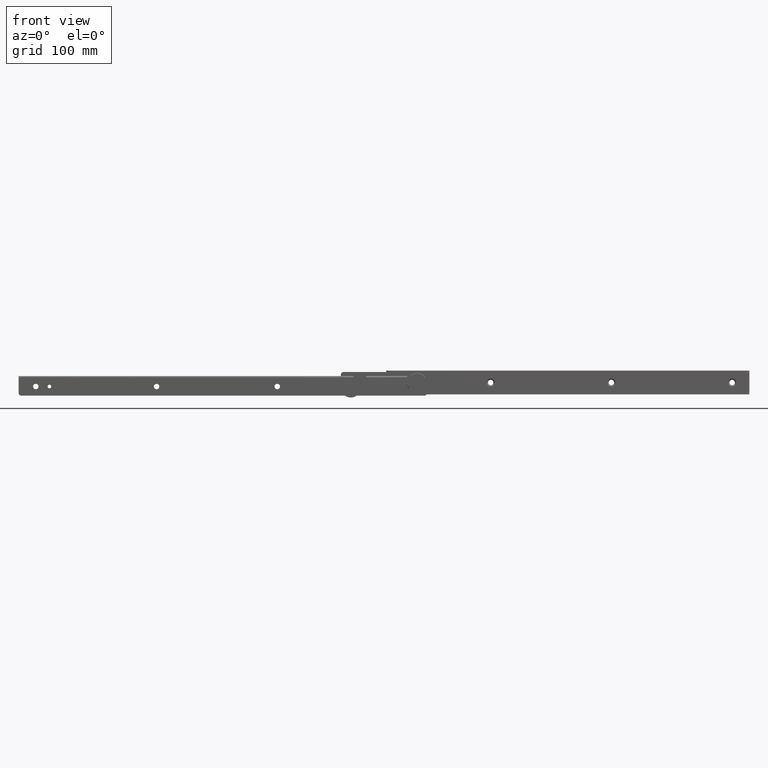
[diagram: clean part render]
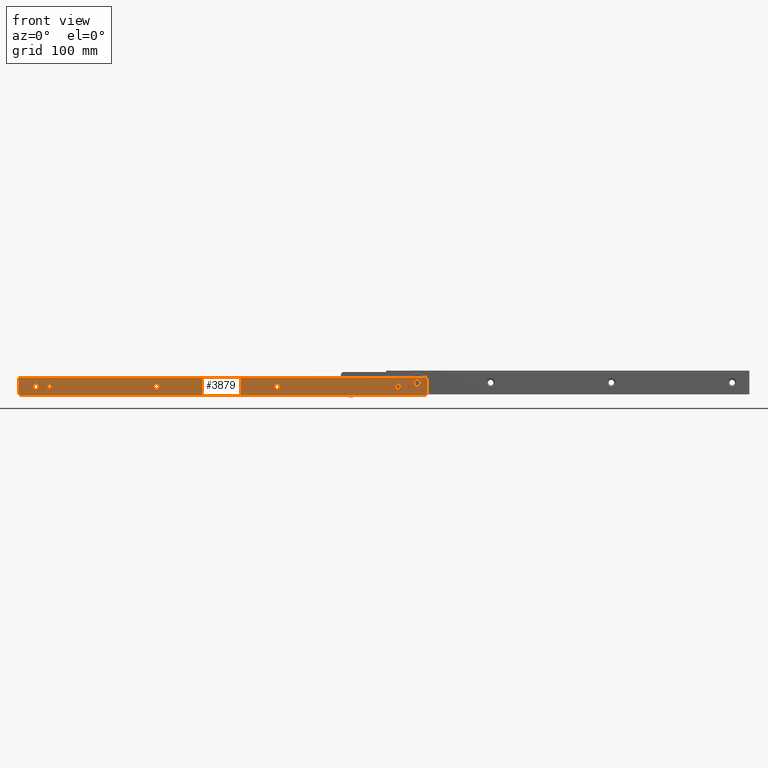
[diagram: same view with one face highlighted and labeled with its STEP entity id]
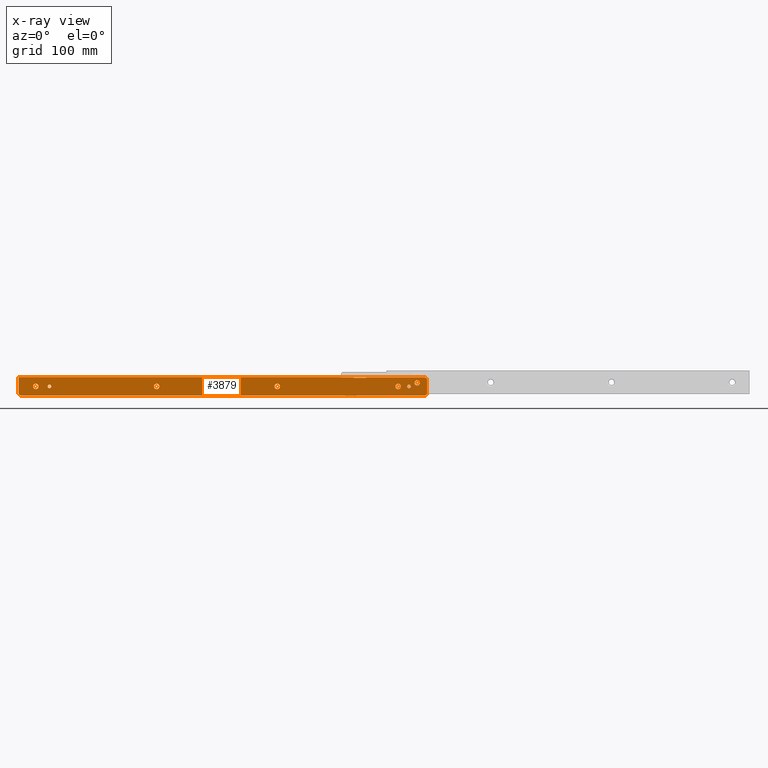
[diagram: x-ray of the same camera — body ghosted, the highlighted face saturated]
A machine part, front view. The second image highlights one B-rep face of the part: STEP entity #3879.
The next image is the same camera in x-ray: the body ghosted, the highlighted face saturated — about 0% of this face is hidden behind the body in this view.
In plain terms, the highlighted face is a freeform B-spline surface patch.
Its self-contained STEP definition (entity closure, byte-faithful):
#1390=CARTESIAN_POINT('',(81.070621897568884,-12.0,-7.251799004887793));
#1391=VERTEX_POINT('',#1390);
#1397=CARTESIAN_POINT('',(84.0,-12.0,-10.549999999999800));
#1398=VERTEX_POINT('',#1397);
#1399=CARTESIAN_POINT('',(81.070621897568884,-12.000000000000005,-7.251799004887793));
#1400=CARTESIAN_POINT('',(81.050000000000011,-12.000000000000002,-7.425288844121707));
#1401=CARTESIAN_POINT('',(81.050000000000011,-12.0,-7.599999999999800));
#1402=CARTESIAN_POINT('',(81.050000000000011,-12.0,-10.549999999999802));
#1403=CARTESIAN_POINT('',(84.0,-12.0,-10.549999999999800));
#1411=(BOUNDED_CURVE()B_SPLINE_CURVE(2,(#1399,#1400,#1401,#1402,#1403),.UNSPECIFIED.,.F.,.U.)B_SPLINE_CURVE_WITH_KNOTS((3,2,3),(0.229562473183962,0.250000000000000,0.500000000000000),.UNSPECIFIED.)CURVE()GEOMETRIC_REPRESENTATION_ITEM()RATIONAL_B_SPLINE_CURVE((0.956026753537775,0.976055947945057,1.0,0.707106781186548,1.0))REPRESENTATION_ITEM(''));
#1412=EDGE_CURVE('',#1391,#1398,#1411,.T.);
#1414=CARTESIAN_POINT('',(86.944497645915249,-12.0,-7.780093345794605));
#1415=VERTEX_POINT('',#1414);
#1416=CARTESIAN_POINT('',(84.0,-12.0,-10.549999999999800));
#1417=CARTESIAN_POINT('',(86.775082606235159,-12.000000000000002,-10.549999999999800));
#1418=CARTESIAN_POINT('',(86.944497645915249,-12.000000000000002,-7.780093345794605));
#1426=(BOUNDED_CURVE()B_SPLINE_CURVE(2,(#1416,#1417,#1418),.UNSPECIFIED.,.F.,.U.)B_SPLINE_CURVE_WITH_KNOTS((3,3),(0.500000000000000,0.739332944173680),.UNSPECIFIED.)CURVE()GEOMETRIC_REPRESENTATION_ITEM()RATIONAL_B_SPLINE_CURVE((1.0,0.719604014451482,0.976072002949424))REPRESENTATION_ITEM(''));
#1427=EDGE_CURVE('',#1398,#1415,#1426,.T.);
#1501=CARTESIAN_POINT('',(84.0,-12.0,-4.649999999999801));
#1502=VERTEX_POINT('',#1501);
#1503=CARTESIAN_POINT('',(86.944497645915249,-12.000000000000004,-7.780093345794605));
#1504=CARTESIAN_POINT('',(86.950000000000003,-11.999999999999998,-7.690130806329885));
#1505=CARTESIAN_POINT('',(86.950000000000003,-12.0,-7.599999999999800));
#1506=CARTESIAN_POINT('',(86.950000000000003,-12.0,-4.649999999999801));
#1507=CARTESIAN_POINT('',(84.0,-12.0,-4.649999999999801));
#1515=(BOUNDED_CURVE()B_SPLINE_CURVE(2,(#1503,#1504,#1505,#1506,#1507),.UNSPECIFIED.,.F.,.U.)B_SPLINE_CURVE_WITH_KNOTS((3,2,3),(0.739332944173680,0.750000000000000,1.0),.UNSPECIFIED.)CURVE()GEOMETRIC_REPRESENTATION_ITEM()RATIONAL_B_SPLINE_CURVE((0.976072002949423,0.987502766735065,1.0,0.707106781186548,1.0))REPRESENTATION_ITEM(''));
#1516=EDGE_CURVE('',#1415,#1502,#1515,.T.);
#1518=CARTESIAN_POINT('',(84.0,-12.0,-4.649999999999801));
#1519=CARTESIAN_POINT('',(81.379885153621856,-12.0,-4.649999999999800));
#1520=CARTESIAN_POINT('',(81.070621897568884,-12.000000000000005,-7.251799004887793));
#1528=(BOUNDED_CURVE()B_SPLINE_CURVE(2,(#1518,#1519,#1520),.UNSPECIFIED.,.F.,.U.)B_SPLINE_CURVE_WITH_KNOTS((3,3),(0.0,0.229562473183962),.UNSPECIFIED.)CURVE()GEOMETRIC_REPRESENTATION_ITEM()RATIONAL_B_SPLINE_CURVE((1.0,0.731050833241490,0.956026753537775))REPRESENTATION_ITEM(''));
#1529=EDGE_CURVE('',#1502,#1391,#1528,.T.);
#1587=CARTESIAN_POINT('',(65.990752003376571,-11.999999992303430,-11.835377339223269));
#1588=VERTEX_POINT('',#1587);
#1594=CARTESIAN_POINT('',(63.0,-12.0,-8.599999999999799));
#1595=VERTEX_POINT('',#1594);
#1596=CARTESIAN_POINT('',(65.990752003376571,-11.999999992303422,-11.835377339223271));
#1597=CARTESIAN_POINT('',(66.0,-11.999999999999998,-11.717870372811326));
#1598=CARTESIAN_POINT('',(66.0,-12.0,-11.599999999999801));
#1599=CARTESIAN_POINT('',(66.0,-12.0,-8.599999999999799));
#1600=CARTESIAN_POINT('',(63.0,-12.0,-8.599999999999799));
#1608=(BOUNDED_CURVE()B_SPLINE_CURVE(2,(#1596,#1597,#1598,#1599,#1600),.UNSPECIFIED.,.F.,.U.)B_SPLINE_CURVE_WITH_KNOTS((3,2,3),(0.736331294723342,0.750000000000000,1.0),.UNSPECIFIED.)CURVE()GEOMETRIC_REPRESENTATION_ITEM()RATIONAL_B_SPLINE_CURVE((0.969723343839298,0.983986115658029,1.0,0.707106781186548,1.0))REPRESENTATION_ITEM(''));
#1609=EDGE_CURVE('',#1588,#1595,#1608,.T.);
#1611=CARTESIAN_POINT('',(60.009247996623429,-11.999999992303421,-11.364622660776320));
#1612=VERTEX_POINT('',#1611);
#1613=CARTESIAN_POINT('',(63.0,-12.0,-8.599999999999799));
#1614=CARTESIAN_POINT('',(60.226828620919044,-12.0,-8.599999999999799));
#1615=CARTESIAN_POINT('',(60.009247996623429,-11.999999992303421,-11.364622660776320));
#1623=(BOUNDED_CURVE()B_SPLINE_CURVE(2,(#1613,#1614,#1615),.UNSPECIFIED.,.F.,.U.)B_SPLINE_CURVE_WITH_KNOTS((3,3),(0.0,0.236331294723342),.UNSPECIFIED.)CURVE()GEOMETRIC_REPRESENTATION_ITEM()RATIONAL_B_SPLINE_CURVE((1.0,0.723120665528519,0.969723343839297))REPRESENTATION_ITEM(''));
#1624=EDGE_CURVE('',#1595,#1612,#1623,.T.);
#1670=CARTESIAN_POINT('',(63.0,-12.0,-14.599999999999801));
#1671=VERTEX_POINT('',#1670);
#1672=CARTESIAN_POINT('',(60.009247996623436,-11.999999992303419,-11.364622660776327));
#1673=CARTESIAN_POINT('',(60.000000000000007,-12.000000000000002,-11.482129627188270));
#1674=CARTESIAN_POINT('',(60.0,-12.0,-11.599999999999801));
#1675=CARTESIAN_POINT('',(60.0,-12.0,-14.599999999999794));
#1676=CARTESIAN_POINT('',(63.0,-12.0,-14.599999999999801));
#1684=(BOUNDED_CURVE()B_SPLINE_CURVE(2,(#1672,#1673,#1674,#1675,#1676),.UNSPECIFIED.,.F.,.U.)B_SPLINE_CURVE_WITH_KNOTS((3,2,3),(0.236331294723342,0.250000000000000,0.500000000000000),.UNSPECIFIED.)CURVE()GEOMETRIC_REPRESENTATION_ITEM()RATIONAL_B_SPLINE_CURVE((0.969723343839297,0.983986115658029,1.0,0.707106781186548,1.0))REPRESENTATION_ITEM(''));
#1685=EDGE_CURVE('',#1612,#1671,#1684,.T.);
#1687=CARTESIAN_POINT('',(63.0,-12.0,-14.599999999999801));
#1688=CARTESIAN_POINT('',(65.773171379080949,-12.0,-14.599999999999801));
#1689=CARTESIAN_POINT('',(65.990752003376571,-11.999999992303430,-11.835377339223271));
#1697=(BOUNDED_CURVE()B_SPLINE_CURVE(2,(#1687,#1688,#1689),.UNSPECIFIED.,.F.,.U.)B_SPLINE_CURVE_WITH_KNOTS((3,3),(0.500000000000000,0.736331294723342),.UNSPECIFIED.)CURVE()GEOMETRIC_REPRESENTATION_ITEM()RATIONAL_B_SPLINE_CURVE((1.0,0.723120665528519,0.969723343839297))REPRESENTATION_ITEM(''));
#1698=EDGE_CURVE('',#1671,#1588,#1697,.T.);
#1769=CARTESIAN_POINT('',(-67.009247996623415,-11.999999992303421,-11.835377339223280));
#1770=VERTEX_POINT('',#1769);
#1776=CARTESIAN_POINT('',(-70.0,-12.0,-8.599999999999799));
#1777=VERTEX_POINT('',#1776);
#1778=CARTESIAN_POINT('',(-67.009247996623415,-11.999999992303424,-11.835377339223275));
#1779=CARTESIAN_POINT('',(-67.000000000000014,-12.0,-11.717870372811326));
#1780=CARTESIAN_POINT('',(-67.0,-12.0,-11.599999999999801));
#1781=CARTESIAN_POINT('',(-67.0,-12.0,-8.599999999999799));
#1782=CARTESIAN_POINT('',(-70.0,-12.0,-8.599999999999799));
#1790=(BOUNDED_CURVE()B_SPLINE_CURVE(2,(#1778,#1779,#1780,#1781,#1782),.UNSPECIFIED.,.F.,.U.)B_SPLINE_CURVE_WITH_KNOTS((3,2,3),(0.736331294723342,0.750000000000000,1.0),.UNSPECIFIED.)CURVE()GEOMETRIC_REPRESENTATION_ITEM()RATIONAL_B_SPLINE_CURVE((0.969723343839297,0.983986115658029,1.0,0.707106781186548,1.0))REPRESENTATION_ITEM(''));
#1791=EDGE_CURVE('',#1770,#1777,#1790,.T.);
#1793=CARTESIAN_POINT('',(-72.990752003376599,-11.999999992303421,-11.364622660776320));
#1794=VERTEX_POINT('',#1793);
#1795=CARTESIAN_POINT('',(-70.0,-12.0,-8.599999999999799));
#1796=CARTESIAN_POINT('',(-72.773171379080964,-12.0,-8.599999999999799));
#1797=CARTESIAN_POINT('',(-72.990752003376599,-11.999999992303421,-11.364622660776320));
#1805=(BOUNDED_CURVE()B_SPLINE_CURVE(2,(#1795,#1796,#1797),.UNSPECIFIED.,.F.,.U.)B_SPLINE_CURVE_WITH_KNOTS((3,3),(0.0,0.236331294723342),.UNSPECIFIED.)CURVE()GEOMETRIC_REPRESENTATION_ITEM()RATIONAL_B_SPLINE_CURVE((1.0,0.723120665528519,0.969723343839297))REPRESENTATION_ITEM(''));
#1806=EDGE_CURVE('',#1777,#1794,#1805,.T.);
#1852=CARTESIAN_POINT('',(-70.0,-12.0,-14.599999999999801));
#1853=VERTEX_POINT('',#1852);
#1854=CARTESIAN_POINT('',(-72.990752003376599,-11.999999992303421,-11.364622660776320));
#1855=CARTESIAN_POINT('',(-73.000000000000014,-12.000000000000004,-11.482129627188272));
#1856=CARTESIAN_POINT('',(-73.000000000000014,-12.0,-11.599999999999801));
#1857=CARTESIAN_POINT('',(-73.000000000000014,-12.0,-14.599999999999794));
#1858=CARTESIAN_POINT('',(-70.0,-12.0,-14.599999999999801));
#1866=(BOUNDED_CURVE()B_SPLINE_CURVE(2,(#1854,#1855,#1856,#1857,#1858),.UNSPECIFIED.,.F.,.U.)B_SPLINE_CURVE_WITH_KNOTS((3,2,3),(0.236331294723342,0.250000000000000,0.500000000000000),.UNSPECIFIED.)CURVE()GEOMETRIC_REPRESENTATION_ITEM()RATIONAL_B_SPLINE_CURVE((0.969723343839297,0.983986115658029,1.0,0.707106781186548,1.0))REPRESENTATION_ITEM(''));
#1867=EDGE_CURVE('',#1794,#1853,#1866,.T.);
#1869=CARTESIAN_POINT('',(-70.0,-12.0,-14.599999999999801));
#1870=CARTESIAN_POINT('',(-67.226828620919051,-12.0,-14.599999999999801));
#1871=CARTESIAN_POINT('',(-67.009247996623415,-11.999999992303421,-11.835377339223271));
#1879=(BOUNDED_CURVE()B_SPLINE_CURVE(2,(#1869,#1870,#1871),.UNSPECIFIED.,.F.,.U.)B_SPLINE_CURVE_WITH_KNOTS((3,3),(0.500000000000000,0.736331294723342),.UNSPECIFIED.)CURVE()GEOMETRIC_REPRESENTATION_ITEM()RATIONAL_B_SPLINE_CURVE((1.0,0.723120665528519,0.969723343839297))REPRESENTATION_ITEM(''));
#1880=EDGE_CURVE('',#1853,#1770,#1879,.T.);
#1951=CARTESIAN_POINT('',(-200.009247996623400,-11.999999992303421,-11.835377339223280));
#1952=VERTEX_POINT('',#1951);
#1958=CARTESIAN_POINT('',(-203.0,-12.0,-8.599999999999799));
#1959=VERTEX_POINT('',#1958);
#1960=CARTESIAN_POINT('',(-200.009247996623460,-11.999999992303424,-11.835377339223275));
#1961=CARTESIAN_POINT('',(-200.000000000000060,-12.0,-11.717870372811326));
#1962=CARTESIAN_POINT('',(-200.0,-12.0,-11.599999999999801));
#1963=CARTESIAN_POINT('',(-200.0,-12.0,-8.599999999999799));
#1964=CARTESIAN_POINT('',(-203.0,-12.0,-8.599999999999799));
#1972=(BOUNDED_CURVE()B_SPLINE_CURVE(2,(#1960,#1961,#1962,#1963,#1964),.UNSPECIFIED.,.F.,.U.)B_SPLINE_CURVE_WITH_KNOTS((3,2,3),(0.736331294723342,0.750000000000000,1.0),.UNSPECIFIED.)CURVE()GEOMETRIC_REPRESENTATION_ITEM()RATIONAL_B_SPLINE_CURVE((0.969723343839297,0.983986115658029,1.0,0.707106781186548,1.0))REPRESENTATION_ITEM(''));
#1973=EDGE_CURVE('',#1952,#1959,#1972,.T.);
#1975=CARTESIAN_POINT('',(-205.990752003376600,-11.999999992303410,-11.364622660776320));
#1976=VERTEX_POINT('',#1975);
#1977=CARTESIAN_POINT('',(-203.0,-12.0,-8.599999999999799));
#1978=CARTESIAN_POINT('',(-205.773171379081020,-12.0,-8.599999999999799));
#1979=CARTESIAN_POINT('',(-205.990752003376570,-11.999999992303410,-11.364622660776320));
#1987=(BOUNDED_CURVE()B_SPLINE_CURVE(2,(#1977,#1978,#1979),.UNSPECIFIED.,.F.,.U.)B_SPLINE_CURVE_WITH_KNOTS((3,3),(0.0,0.236331294723342),.UNSPECIFIED.)CURVE()GEOMETRIC_REPRESENTATION_ITEM()RATIONAL_B_SPLINE_CURVE((1.0,0.723120665528519,0.969723343839297))REPRESENTATION_ITEM(''));
#1988=EDGE_CURVE('',#1959,#1976,#1987,.T.);
#2034=CARTESIAN_POINT('',(-203.0,-12.0,-14.599999999999801));
#2035=VERTEX_POINT('',#2034);
#2036=CARTESIAN_POINT('',(-205.990752003376540,-11.999999992303408,-11.364622660776318));
#2037=CARTESIAN_POINT('',(-206.000000000000060,-12.000000000000004,-11.482129627188272));
#2038=CARTESIAN_POINT('',(-206.0,-12.0,-11.599999999999801));
#2039=CARTESIAN_POINT('',(-206.0,-12.0,-14.599999999999794));
#2040=CARTESIAN_POINT('',(-203.0,-12.0,-14.599999999999801));
#2048=(BOUNDED_CURVE()B_SPLINE_CURVE(2,(#2036,#2037,#2038,#2039,#2040),.UNSPECIFIED.,.F.,.U.)B_SPLINE_CURVE_WITH_KNOTS((3,2,3),(0.236331294723342,0.250000000000000,0.500000000000000),.UNSPECIFIED.)CURVE()GEOMETRIC_REPRESENTATION_ITEM()RATIONAL_B_SPLINE_CURVE((0.969723343839297,0.983986115658029,1.0,0.707106781186548,1.0))REPRESENTATION_ITEM(''));
#2049=EDGE_CURVE('',#1976,#2035,#2048,.T.);
#2051=CARTESIAN_POINT('',(-203.0,-12.0,-14.599999999999801));
#2052=CARTESIAN_POINT('',(-200.226828620919010,-12.0,-14.599999999999801));
#2053=CARTESIAN_POINT('',(-200.009247996623460,-11.999999992303421,-11.835377339223271));
#2061=(BOUNDED_CURVE()B_SPLINE_CURVE(2,(#2051,#2052,#2053),.UNSPECIFIED.,.F.,.U.)B_SPLINE_CURVE_WITH_KNOTS((3,3),(0.500000000000000,0.736331294723342),.UNSPECIFIED.)CURVE()GEOMETRIC_REPRESENTATION_ITEM()RATIONAL_B_SPLINE_CURVE((1.0,0.723120665528519,0.969723343839297))REPRESENTATION_ITEM(''));
#2062=EDGE_CURVE('',#2035,#1952,#2061,.T.);
#2133=CARTESIAN_POINT('',(-333.009247996623510,-11.999999992303430,-11.835377339223269));
#2134=VERTEX_POINT('',#2133);
#2140=CARTESIAN_POINT('',(-336.0,-12.0,-8.599999999999799));
#2141=VERTEX_POINT('',#2140);
#2142=CARTESIAN_POINT('',(-333.009247996623510,-11.999999992303430,-11.835377339223269));
#2143=CARTESIAN_POINT('',(-333.0,-11.999999999999996,-11.717870372811324));
#2144=CARTESIAN_POINT('',(-333.0,-12.0,-11.599999999999801));
#2145=CARTESIAN_POINT('',(-333.000000000000110,-12.0,-8.599999999999799));
#2146=CARTESIAN_POINT('',(-336.0,-12.0,-8.599999999999799));
#2154=(BOUNDED_CURVE()B_SPLINE_CURVE(2,(#2142,#2143,#2144,#2145,#2146),.UNSPECIFIED.,.F.,.U.)B_SPLINE_CURVE_WITH_KNOTS((3,2,3),(0.736331294723342,0.750000000000000,1.0),.UNSPECIFIED.)CURVE()GEOMETRIC_REPRESENTATION_ITEM()RATIONAL_B_SPLINE_CURVE((0.969723343839298,0.983986115658029,1.0,0.707106781186548,1.0))REPRESENTATION_ITEM(''));
#2155=EDGE_CURVE('',#2134,#2141,#2154,.T.);
#2157=CARTESIAN_POINT('',(-338.990752003376600,-11.999999992303430,-11.364622660776330));
#2158=VERTEX_POINT('',#2157);
#2159=CARTESIAN_POINT('',(-336.0,-12.0,-8.599999999999799));
#2160=CARTESIAN_POINT('',(-338.773171379081080,-12.000000000000002,-8.599999999999803));
#2161=CARTESIAN_POINT('',(-338.990752003376600,-11.999999992303438,-11.364622660776327));
#2169=(BOUNDED_CURVE()B_SPLINE_CURVE(2,(#2159,#2160,#2161),.UNSPECIFIED.,.F.,.U.)B_SPLINE_CURVE_WITH_KNOTS((3,3),(0.0,0.236331294723343),.UNSPECIFIED.)CURVE()GEOMETRIC_REPRESENTATION_ITEM()RATIONAL_B_SPLINE_CURVE((1.0,0.723120665528518,0.969723343839298))REPRESENTATION_ITEM(''));
#2170=EDGE_CURVE('',#2141,#2158,#2169,.T.);
#2216=CARTESIAN_POINT('',(-336.0,-12.0,-14.599999999999801));
#2217=VERTEX_POINT('',#2216);
#2218=CARTESIAN_POINT('',(-338.990752003376600,-11.999999992303438,-11.364622660776327));
#2219=CARTESIAN_POINT('',(-339.0,-11.999999999999996,-11.482129627188275));
#2220=CARTESIAN_POINT('',(-339.0,-12.0,-11.599999999999801));
#2221=CARTESIAN_POINT('',(-339.0,-12.0,-14.599999999999794));
#2222=CARTESIAN_POINT('',(-336.0,-12.0,-14.599999999999801));
#2230=(BOUNDED_CURVE()B_SPLINE_CURVE(2,(#2218,#2219,#2220,#2221,#2222),.UNSPECIFIED.,.F.,.U.)B_SPLINE_CURVE_WITH_KNOTS((3,2,3),(0.236331294723343,0.250000000000000,0.500000000000000),.UNSPECIFIED.)CURVE()GEOMETRIC_REPRESENTATION_ITEM()RATIONAL_B_SPLINE_CURVE((0.969723343839298,0.983986115658030,1.0,0.707106781186548,1.0))REPRESENTATION_ITEM(''));
#2231=EDGE_CURVE('',#2158,#2217,#2230,.T.);
#2233=CARTESIAN_POINT('',(-336.0,-12.0,-14.599999999999801));
#2234=CARTESIAN_POINT('',(-333.226828620918980,-12.0,-14.599999999999801));
#2235=CARTESIAN_POINT('',(-333.009247996623460,-11.999999992303430,-11.835377339223271));
#2243=(BOUNDED_CURVE()B_SPLINE_CURVE(2,(#2233,#2234,#2235),.UNSPECIFIED.,.F.,.U.)B_SPLINE_CURVE_WITH_KNOTS((3,3),(0.500000000000000,0.736331294723342),.UNSPECIFIED.)CURVE()GEOMETRIC_REPRESENTATION_ITEM()RATIONAL_B_SPLINE_CURVE((1.0,0.723120665528519,0.969723343839297))REPRESENTATION_ITEM(''));
#2244=EDGE_CURVE('',#2217,#2134,#2243,.T.);
#2304=CARTESIAN_POINT('',(73.013980951174034,-12.0,-11.363931497864510));
#2305=VERTEX_POINT('',#2304);
#2311=CARTESIAN_POINT('',(75.0,-12.0,-13.599999999999801));
#2312=VERTEX_POINT('',#2311);
#2313=CARTESIAN_POINT('',(73.013980951174034,-11.999999999999998,-11.363931497864506));
#2314=CARTESIAN_POINT('',(73.0,-12.000000000000004,-11.481551727527217));
#2315=CARTESIAN_POINT('',(73.0,-12.0,-11.599999999999801));
#2316=CARTESIAN_POINT('',(72.999999999999986,-12.0,-13.599999999999799));
#2317=CARTESIAN_POINT('',(75.0,-12.0,-13.599999999999801));
#2325=(BOUNDED_CURVE()B_SPLINE_CURVE(2,(#2313,#2314,#2315,#2316,#2317),.UNSPECIFIED.,.F.,.U.)B_SPLINE_CURVE_WITH_KNOTS((3,2,3),(0.229562467929609,0.250000000000000,0.500000000000000),.UNSPECIFIED.)CURVE()GEOMETRIC_REPRESENTATION_ITEM()RATIONAL_B_SPLINE_CURVE((0.956026743239028,0.976055941789200,1.0,0.707106781186548,1.0))REPRESENTATION_ITEM(''));
#2326=EDGE_CURVE('',#2305,#2312,#2325,.T.);
#2328=CARTESIAN_POINT('',(76.996269595957983,-12.0,-11.722097093551350));
#2329=VERTEX_POINT('',#2328);
#2330=CARTESIAN_POINT('',(75.0,-12.0,-13.599999999999801));
#2331=CARTESIAN_POINT('',(76.881412106463145,-12.0,-13.599999999999799));
#2332=CARTESIAN_POINT('',(76.996269595957983,-12.000000000000002,-11.722097093551351));
#2340=(BOUNDED_CURVE()B_SPLINE_CURVE(2,(#2330,#2331,#2332),.UNSPECIFIED.,.F.,.U.)B_SPLINE_CURVE_WITH_KNOTS((3,3),(0.500000000000000,0.739332959738503),.UNSPECIFIED.)CURVE()GEOMETRIC_REPRESENTATION_ITEM()RATIONAL_B_SPLINE_CURVE((1.0,0.719603996216158,0.976072036307799))REPRESENTATION_ITEM(''));
#2341=EDGE_CURVE('',#2312,#2329,#2340,.T.);
#2415=CARTESIAN_POINT('',(75.0,-12.0,-9.599999999999799));
#2416=VERTEX_POINT('',#2415);
#2417=CARTESIAN_POINT('',(76.996269595957983,-11.999999999999995,-11.722097093551355));
#2418=CARTESIAN_POINT('',(77.0,-11.999999999999998,-11.661105541119424));
#2419=CARTESIAN_POINT('',(77.0,-12.0,-11.599999999999801));
#2420=CARTESIAN_POINT('',(77.000000000000014,-12.0,-9.599999999999799));
#2421=CARTESIAN_POINT('',(75.0,-12.0,-9.599999999999799));
#2429=(BOUNDED_CURVE()B_SPLINE_CURVE(2,(#2417,#2418,#2419,#2420,#2421),.UNSPECIFIED.,.F.,.U.)B_SPLINE_CURVE_WITH_KNOTS((3,2,3),(0.739332959738504,0.750000000000000,1.0),.UNSPECIFIED.)CURVE()GEOMETRIC_REPRESENTATION_ITEM()RATIONAL_B_SPLINE_CURVE((0.976072036307801,0.987502784970391,1.0,0.707106781186548,1.0))REPRESENTATION_ITEM(''));
#2430=EDGE_CURVE('',#2329,#2416,#2429,.T.);
#2432=CARTESIAN_POINT('',(75.0,-12.0,-9.599999999999799));
#2433=CARTESIAN_POINT('',(73.223651007223935,-12.0,-9.599999999999799));
#2434=CARTESIAN_POINT('',(73.013980951174034,-11.999999999999995,-11.363931497864504));
#2442=(BOUNDED_CURVE()B_SPLINE_CURVE(2,(#2432,#2433,#2434),.UNSPECIFIED.,.F.,.U.)B_SPLINE_CURVE_WITH_KNOTS((3,3),(0.0,0.229562467929609),.UNSPECIFIED.)CURVE()GEOMETRIC_REPRESENTATION_ITEM()RATIONAL_B_SPLINE_CURVE((1.0,0.731050839397348,0.956026743239028))REPRESENTATION_ITEM(''));
#2443=EDGE_CURVE('',#2416,#2305,#2442,.T.);
#2490=CARTESIAN_POINT('',(-322.986019048825880,-12.0,-11.363931497864510));
#2491=VERTEX_POINT('',#2490);
#2497=CARTESIAN_POINT('',(-321.0,-12.0,-13.599999999999801));
#2498=VERTEX_POINT('',#2497);
#2499=CARTESIAN_POINT('',(-322.986019048825990,-12.000000000000002,-11.363931497864510));
#2500=CARTESIAN_POINT('',(-323.000000000000060,-11.999999999999996,-11.481551727527219));
#2501=CARTESIAN_POINT('',(-323.0,-12.0,-11.599999999999801));
#2502=CARTESIAN_POINT('',(-323.000000000000060,-12.0,-13.599999999999799));
#2503=CARTESIAN_POINT('',(-321.0,-12.0,-13.599999999999801));
#2511=(BOUNDED_CURVE()B_SPLINE_CURVE(2,(#2499,#2500,#2501,#2502,#2503),.UNSPECIFIED.,.F.,.U.)B_SPLINE_CURVE_WITH_KNOTS((3,2,3),(0.229562467929608,0.250000000000000,0.500000000000000),.UNSPECIFIED.)CURVE()GEOMETRIC_REPRESENTATION_ITEM()RATIONAL_B_SPLINE_CURVE((0.956026743239027,0.976055941789200,1.0,0.707106781186548,1.0))REPRESENTATION_ITEM(''));
#2512=EDGE_CURVE('',#2491,#2498,#2511,.T.);
#2514=CARTESIAN_POINT('',(-319.003730404042020,-12.0,-11.722097093551350));
#2515=VERTEX_POINT('',#2514);
#2516=CARTESIAN_POINT('',(-321.0,-12.0,-13.599999999999801));
#2517=CARTESIAN_POINT('',(-319.118587893536810,-12.0,-13.599999999999799));
#2518=CARTESIAN_POINT('',(-319.003730404042020,-12.000000000000002,-11.722097093551351));
#2526=(BOUNDED_CURVE()B_SPLINE_CURVE(2,(#2516,#2517,#2518),.UNSPECIFIED.,.F.,.U.)B_SPLINE_CURVE_WITH_KNOTS((3,3),(0.500000000000000,0.739332959738503),.UNSPECIFIED.)CURVE()GEOMETRIC_REPRESENTATION_ITEM()RATIONAL_B_SPLINE_CURVE((1.0,0.719603996216158,0.976072036307799))REPRESENTATION_ITEM(''));
#2527=EDGE_CURVE('',#2498,#2515,#2526,.T.);
#2601=CARTESIAN_POINT('',(-321.0,-12.0,-9.599999999999799));
#2602=VERTEX_POINT('',#2601);
#2603=CARTESIAN_POINT('',(-319.003730404042070,-12.0,-11.722097093551350));
#2604=CARTESIAN_POINT('',(-319.0,-12.000000000000002,-11.661105541119426));
#2605=CARTESIAN_POINT('',(-319.0,-12.0,-11.599999999999801));
#2606=CARTESIAN_POINT('',(-319.0,-12.0,-9.599999999999799));
#2607=CARTESIAN_POINT('',(-321.0,-12.0,-9.599999999999799));
#2615=(BOUNDED_CURVE()B_SPLINE_CURVE(2,(#2603,#2604,#2605,#2606,#2607),.UNSPECIFIED.,.F.,.U.)B_SPLINE_CURVE_WITH_KNOTS((3,2,3),(0.739332959738504,0.750000000000000,1.0),.UNSPECIFIED.)CURVE()GEOMETRIC_REPRESENTATION_ITEM()RATIONAL_B_SPLINE_CURVE((0.976072036307801,0.987502784970391,1.0,0.707106781186548,1.0))REPRESENTATION_ITEM(''));
#2616=EDGE_CURVE('',#2515,#2602,#2615,.T.);
#2618=CARTESIAN_POINT('',(-321.0,-12.0,-9.599999999999799));
#2619=CARTESIAN_POINT('',(-322.776348992776090,-12.0,-9.599999999999801));
#2620=CARTESIAN_POINT('',(-322.986019048825990,-12.000000000000005,-11.363931497864503));
#2628=(BOUNDED_CURVE()B_SPLINE_CURVE(2,(#2618,#2619,#2620),.UNSPECIFIED.,.F.,.U.)B_SPLINE_CURVE_WITH_KNOTS((3,3),(0.0,0.229562467929608),.UNSPECIFIED.)CURVE()GEOMETRIC_REPRESENTATION_ITEM()RATIONAL_B_SPLINE_CURVE((1.0,0.731050839397348,0.956026743239027))REPRESENTATION_ITEM(''));
#2629=EDGE_CURVE('',#2602,#2491,#2628,.T.);
#3061=CARTESIAN_POINT('',(14.0,-12.0,-1.999999999999800));
#3062=VERTEX_POINT('',#3061);
#3068=CARTESIAN_POINT('',(28.0,-12.0,-1.999999999999800));
#3069=VERTEX_POINT('',#3068);
#3070=CARTESIAN_POINT('',(28.0,-12.0,-1.999999999999800));
#3071=CARTESIAN_POINT('',(14.0,-12.0,-1.999999999999800));
#3072=QUASI_UNIFORM_CURVE('',1,(#3070,#3071),.UNSPECIFIED.,.F.,.U.);
#3073=EDGE_CURVE('',#3069,#3062,#3072,.T.);
#3097=CARTESIAN_POINT('',(92.0,-12.0,-21.600000000000001));
#3098=VERTEX_POINT('',#3097);
#3099=CARTESIAN_POINT('',(95.0,-12.0,-18.600000000000001));
#3100=VERTEX_POINT('',#3099);
#3101=CARTESIAN_POINT('',(92.0,-12.0,-21.600000000000001));
#3102=CARTESIAN_POINT('',(95.000000000000014,-12.0,-21.600000000000005));
#3103=CARTESIAN_POINT('',(95.0,-12.0,-18.600000000000001));
#3111=(BOUNDED_CURVE()B_SPLINE_CURVE(2,(#3101,#3102,#3103),.UNSPECIFIED.,.F.,.U.)CURVE()GEOMETRIC_REPRESENTATION_ITEM()QUASI_UNIFORM_CURVE()RATIONAL_B_SPLINE_CURVE((1.0,0.707106781186548,1.0))REPRESENTATION_ITEM(''));
#3112=EDGE_CURVE('',#3098,#3100,#3111,.T.);
#3175=CARTESIAN_POINT('',(92.0,-12.0,-1.599999999999795));
#3176=VERTEX_POINT('',#3175);
#3182=CARTESIAN_POINT('',(95.0,-12.0,-4.599999999999800));
#3183=VERTEX_POINT('',#3182);
#3184=CARTESIAN_POINT('',(95.0,-12.0,-4.599999999999800));
#3185=CARTESIAN_POINT('',(95.000000000000014,-12.0,-1.599999999999799));
#3186=CARTESIAN_POINT('',(92.0,-12.0,-1.599999999999800));
#3194=(BOUNDED_CURVE()B_SPLINE_CURVE(2,(#3184,#3185,#3186),.UNSPECIFIED.,.F.,.U.)CURVE()GEOMETRIC_REPRESENTATION_ITEM()QUASI_UNIFORM_CURVE()RATIONAL_B_SPLINE_CURVE((1.0,0.707106781186548,1.0))REPRESENTATION_ITEM(''));
#3195=EDGE_CURVE('',#3183,#3176,#3194,.T.);
#3341=CARTESIAN_POINT('',(-355.0,-12.0,-18.600000000000001));
#3342=VERTEX_POINT('',#3341);
#3343=CARTESIAN_POINT('',(-352.0,-12.0,-21.600000000000001));
#3344=VERTEX_POINT('',#3343);
#3345=CARTESIAN_POINT('',(-355.0,-12.0,-18.600000000000001));
#3346=CARTESIAN_POINT('',(-355.000000000000060,-12.0,-21.600000000000005));
#3347=CARTESIAN_POINT('',(-352.0,-12.0,-21.600000000000001));
#3355=(BOUNDED_CURVE()B_SPLINE_CURVE(2,(#3345,#3346,#3347),.UNSPECIFIED.,.F.,.U.)CURVE()GEOMETRIC_REPRESENTATION_ITEM()QUASI_UNIFORM_CURVE()RATIONAL_B_SPLINE_CURVE((1.0,0.707106781186548,1.0))REPRESENTATION_ITEM(''));
#3356=EDGE_CURVE('',#3342,#3344,#3355,.T.);
#3393=CARTESIAN_POINT('',(73.0,-12.0,-1.599999999999795));
#3394=VERTEX_POINT('',#3393);
#3395=CARTESIAN_POINT('',(92.0,-12.0,-1.599999999999795));
#3396=CARTESIAN_POINT('',(73.0,-12.0,-1.599999999999795));
#3397=QUASI_UNIFORM_CURVE('',1,(#3395,#3396),.UNSPECIFIED.,.F.,.U.);
#3398=EDGE_CURVE('',#3176,#3394,#3397,.T.);
#3464=CARTESIAN_POINT('',(-355.0,-12.0,-1.599999999999795));
#3465=VERTEX_POINT('',#3464);
#3466=CARTESIAN_POINT('',(-355.0,-12.0,-1.599999999999795));
#3467=CARTESIAN_POINT('',(-355.0,-12.0,-18.600000000000001));
#3468=QUASI_UNIFORM_CURVE('',1,(#3466,#3467),.UNSPECIFIED.,.F.,.U.);
#3469=EDGE_CURVE('',#3465,#3342,#3468,.T.);
#3511=CARTESIAN_POINT('',(95.0,-12.0,-4.599999999999800));
#3512=CARTESIAN_POINT('',(95.0,-12.0,-18.600000000000001));
#3513=QUASI_UNIFORM_CURVE('',1,(#3511,#3512),.UNSPECIFIED.,.F.,.U.);
#3514=EDGE_CURVE('',#3183,#3100,#3513,.T.);
#3531=CARTESIAN_POINT('',(92.0,-12.0,-21.600000000000001));
#3532=CARTESIAN_POINT('',(-352.0,-12.0,-21.600000000000001));
#3533=QUASI_UNIFORM_CURVE('',1,(#3531,#3532),.UNSPECIFIED.,.F.,.U.);
#3534=EDGE_CURVE('',#3098,#3344,#3533,.T.);
#3560=CARTESIAN_POINT('',(28.0,-12.0,-1.599999999999795));
#3561=VERTEX_POINT('',#3560);
#3575=CARTESIAN_POINT('',(73.0,-12.0,-1.599999999999795));
#3576=CARTESIAN_POINT('',(28.0,-12.0,-1.599999999999795));
#3577=QUASI_UNIFORM_CURVE('',1,(#3575,#3576),.UNSPECIFIED.,.F.,.U.);
#3578=EDGE_CURVE('',#3394,#3561,#3577,.T.);
#3598=CARTESIAN_POINT('',(14.0,-12.0,-1.599999999999795));
#3599=VERTEX_POINT('',#3598);
#3620=CARTESIAN_POINT('',(14.0,-12.0,-1.599999999999795));
#3621=CARTESIAN_POINT('',(-355.0,-12.0,-1.599999999999795));
#3622=QUASI_UNIFORM_CURVE('',1,(#3620,#3621),.UNSPECIFIED.,.F.,.U.);
#3623=EDGE_CURVE('',#3599,#3465,#3622,.T.);
#3810=CARTESIAN_POINT('',(-377.477499127812680,-12.0,-22.599000336727510));
#3811=CARTESIAN_POINT('',(-377.477499127812680,-12.0,-0.600999484458351));
#3812=CARTESIAN_POINT('',(117.477511197753200,-12.0,-22.599000336727510));
#3813=CARTESIAN_POINT('',(117.477511197753200,-12.0,-0.600999484458351));
#3814=B_SPLINE_SURFACE_WITH_KNOTS('',1,1,((#3810,#3812),(#3811,#3813)),.UNSPECIFIED.,.F.,.F.,.U.,(2,2),(2,2),(0.0,21.998000852269161),(0.0,494.955010325565920),.UNSPECIFIED.);
#3815=CARTESIAN_POINT('',(14.0,-12.0,-1.999999999999800));
#3816=CARTESIAN_POINT('',(14.0,-12.0,-1.599999999999795));
#3817=QUASI_UNIFORM_CURVE('',1,(#3815,#3816),.UNSPECIFIED.,.F.,.U.);
#3818=EDGE_CURVE('',#3062,#3599,#3817,.T.);
#3819=ORIENTED_EDGE('',*,*,#3818,.T.);
#3820=ORIENTED_EDGE('',*,*,#3623,.T.);
#3821=ORIENTED_EDGE('',*,*,#3469,.T.);
#3822=ORIENTED_EDGE('',*,*,#3356,.T.);
#3823=ORIENTED_EDGE('',*,*,#3534,.F.);
#3824=ORIENTED_EDGE('',*,*,#3112,.T.);
#3825=ORIENTED_EDGE('',*,*,#3514,.F.);
#3826=ORIENTED_EDGE('',*,*,#3195,.T.);
#3827=ORIENTED_EDGE('',*,*,#3398,.T.);
#3828=ORIENTED_EDGE('',*,*,#3578,.T.);
#3829=CARTESIAN_POINT('',(28.0,-12.0,-1.599999999999795));
#3830=CARTESIAN_POINT('',(28.0,-12.0,-1.999999999999800));
#3831=QUASI_UNIFORM_CURVE('',1,(#3829,#3830),.UNSPECIFIED.,.F.,.U.);
#3832=EDGE_CURVE('',#3561,#3069,#3831,.T.);
#3833=ORIENTED_EDGE('',*,*,#3832,.T.);
#3834=ORIENTED_EDGE('',*,*,#3073,.T.);
#3835=EDGE_LOOP('',(#3819,#3820,#3821,#3822,#3823,#3824,#3825,#3826,#3827,#3828,#3833,#3834));
#3836=FACE_OUTER_BOUND('',#3835,.T.);
#3837=ORIENTED_EDGE('',*,*,#2527,.F.);
#3838=ORIENTED_EDGE('',*,*,#2512,.F.);
#3839=ORIENTED_EDGE('',*,*,#2629,.F.);
#3840=ORIENTED_EDGE('',*,*,#2616,.F.);
#3841=EDGE_LOOP('',(#3837,#3838,#3839,#3840));
#3842=FACE_BOUND('',#3841,.T.);
#3843=ORIENTED_EDGE('',*,*,#2341,.F.);
#3844=ORIENTED_EDGE('',*,*,#2326,.F.);
#3845=ORIENTED_EDGE('',*,*,#2443,.F.);
#3846=ORIENTED_EDGE('',*,*,#2430,.F.);
#3847=EDGE_LOOP('',(#3843,#3844,#3845,#3846));
#3848=FACE_BOUND('',#3847,.T.);
#3849=ORIENTED_EDGE('',*,*,#2244,.F.);
#3850=ORIENTED_EDGE('',*,*,#2231,.F.);
#3851=ORIENTED_EDGE('',*,*,#2170,.F.);
#3852=ORIENTED_EDGE('',*,*,#2155,.F.);
#3853=EDGE_LOOP('',(#3849,#3850,#3851,#3852));
#3854=FACE_BOUND('',#3853,.T.);
#3855=ORIENTED_EDGE('',*,*,#2062,.F.);
#3856=ORIENTED_EDGE('',*,*,#2049,.F.);
#3857=ORIENTED_EDGE('',*,*,#1988,.F.);
#3858=ORIENTED_EDGE('',*,*,#1973,.F.);
#3859=EDGE_LOOP('',(#3855,#3856,#3857,#3858));
#3860=FACE_BOUND('',#3859,.T.);
#3861=ORIENTED_EDGE('',*,*,#1880,.F.);
#3862=ORIENTED_EDGE('',*,*,#1867,.F.);
#3863=ORIENTED_EDGE('',*,*,#1806,.F.);
#3864=ORIENTED_EDGE('',*,*,#1791,.F.);
#3865=EDGE_LOOP('',(#3861,#3862,#3863,#3864));
#3866=FACE_BOUND('',#3865,.T.);
#3867=ORIENTED_EDGE('',*,*,#1698,.F.);
#3868=ORIENTED_EDGE('',*,*,#1685,.F.);
#3869=ORIENTED_EDGE('',*,*,#1624,.F.);
#3870=ORIENTED_EDGE('',*,*,#1609,.F.);
#3871=EDGE_LOOP('',(#3867,#3868,#3869,#3870));
#3872=FACE_BOUND('',#3871,.T.);
#3873=ORIENTED_EDGE('',*,*,#1427,.F.);
#3874=ORIENTED_EDGE('',*,*,#1412,.F.);
#3875=ORIENTED_EDGE('',*,*,#1529,.F.);
#3876=ORIENTED_EDGE('',*,*,#1516,.F.);
#3877=EDGE_LOOP('',(#3873,#3874,#3875,#3876));
#3878=FACE_BOUND('',#3877,.T.);
#3879=ADVANCED_FACE('',(#3836,#3842,#3848,#3854,#3860,#3866,#3872,#3878),#3814,.F.);